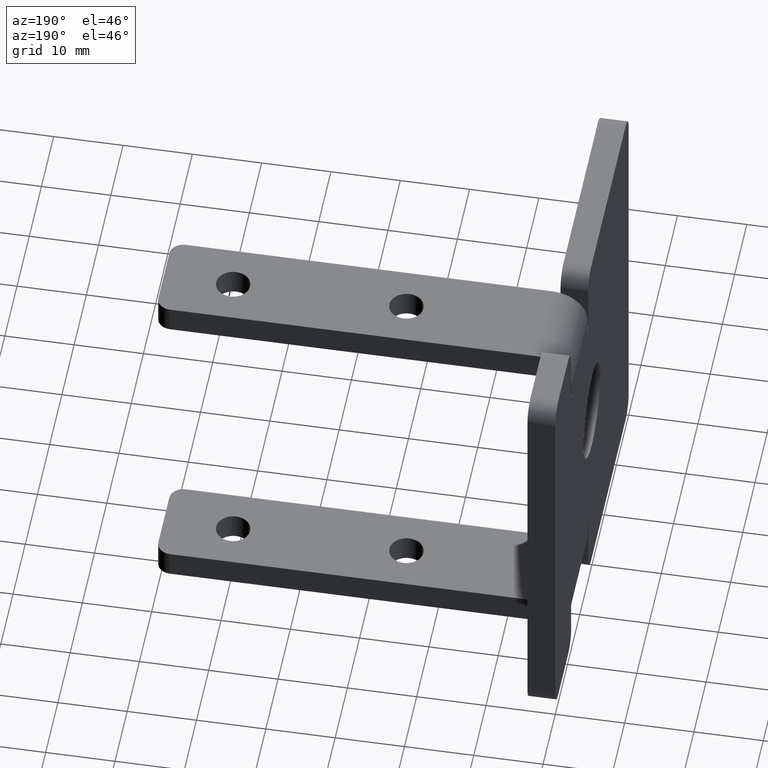
[diagram: clean part render]
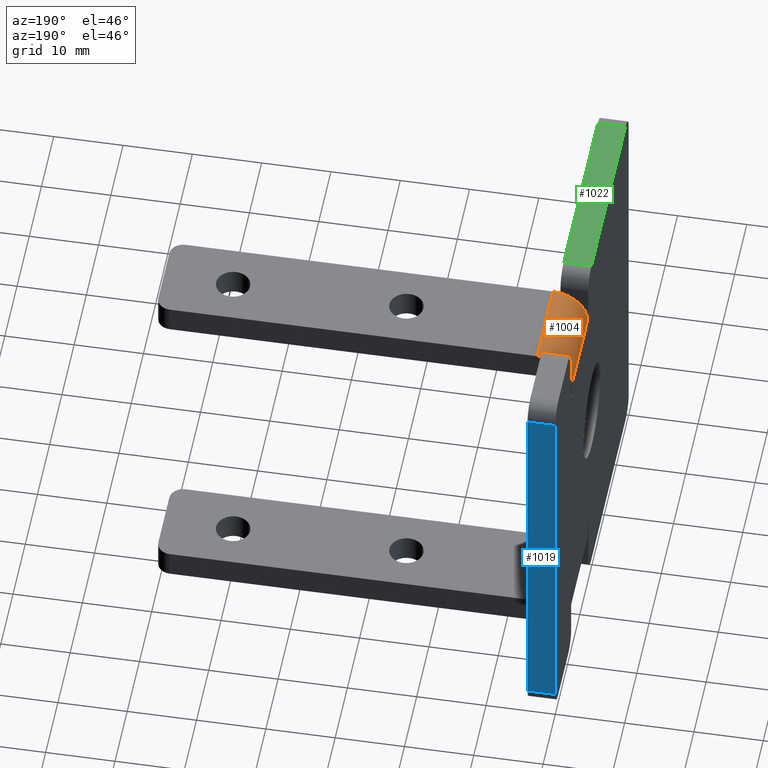
[diagram: same view with three faces highlighted in distinct colors, each labeled with its STEP entity id]
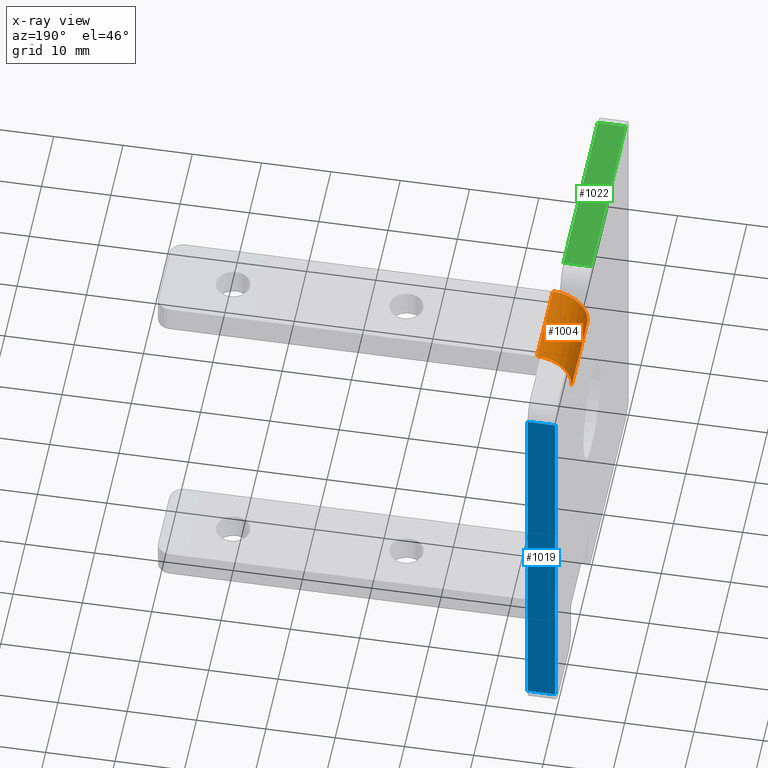
[diagram: x-ray of the same camera — body ghosted, the three highlighted faces saturated]
A machine part, auxiliary view with three faces highlighted in distinct colors.
The next image is the same camera in x-ray (body ghosted, the three faces saturated) — at least one of them is partly hidden behind the body in this view.
Their STEP definitions:

[orange] entity #1004 — the highlighted cylindrical surface (edge-blend (fillet) strip) has radius 5 mm, axis along (0, 1, -0).
#89=FACE_OUTER_BOUND('',#152,.T.);
#152=EDGE_LOOP('',(#856,#857,#858,#859));
#210=LINE('',#1587,#303);
#254=LINE('',#1721,#347);
#303=VECTOR('',#1252,10.);
#347=VECTOR('',#1402,10.);
#410=CIRCLE('',#1129,5.);
#411=CIRCLE('',#1130,4.99999999999999);
#468=VERTEX_POINT('',#1584);
#469=VERTEX_POINT('',#1586);
#500=VERTEX_POINT('',#1678);
#506=VERTEX_POINT('',#1696);
#567=EDGE_CURVE('',#468,#469,#210,.T.);
#635=EDGE_CURVE('',#500,#506,#254,.T.);
#636=EDGE_CURVE('',#469,#500,#410,.T.);
#637=EDGE_CURVE('',#506,#468,#411,.T.);
#856=ORIENTED_EDGE('',*,*,#635,.F.);
#857=ORIENTED_EDGE('',*,*,#636,.F.);
#858=ORIENTED_EDGE('',*,*,#567,.F.);
#859=ORIENTED_EDGE('',*,*,#637,.F.);
#961=CYLINDRICAL_SURFACE('',#1128,5.);
#1004=ADVANCED_FACE('',(#89),#961,.T.);
#1128=AXIS2_PLACEMENT_3D('',#1720,#1400,#1401);
#1129=AXIS2_PLACEMENT_3D('',#1722,#1403,#1404);
#1130=AXIS2_PLACEMENT_3D('',#1723,#1405,#1406);
#1252=DIRECTION('',(0.,1.,-6.34413156928661E-16));
#1400=DIRECTION('center_axis',(0.,1.,-6.34413156928661E-16));
#1401=DIRECTION('ref_axis',(-1.,0.,0.));
#1402=DIRECTION('',(3.94430452610506E-31,-1.,1.74922431089387E-16));
#1403=DIRECTION('center_axis',(0.,1.,-6.34413156928661E-16));
#1404=DIRECTION('ref_axis',(-1.,0.,3.5527136788005E-15));
#1405=DIRECTION('center_axis',(0.,-1.,6.34413156928661E-16));
#1406=DIRECTION('ref_axis',(-9.99200722162643E-16,6.66133814775095E-16,
1.));
#1584=CARTESIAN_POINT('',(0.,3.50000000000007,22.0000000000018));
#1586=CARTESIAN_POINT('',(-5.55111512312578E-16,16.5000000000001,22.0000000000018));
#1587=CARTESIAN_POINT('',(0.,1.50000000000004,22.0000000000018));
#1678=CARTESIAN_POINT('',(5.,16.5000000000001,27.0000000000018));
#1696=CARTESIAN_POINT('',(5.,3.50000000000006,27.0000000000018));
#1720=CARTESIAN_POINT('Origin',(5.,10.0000000000001,22.0000000000018));
#1721=CARTESIAN_POINT('',(5.,10.0000000000001,27.0000000000018));
#1722=CARTESIAN_POINT('Origin',(5.,16.5000000000001,22.0000000000018));
#1723=CARTESIAN_POINT('Origin',(5.,3.50000000000005,22.0000000000018));

[blue] entity #1019 — the highlighted planar face has unit normal (0, 1, 0).
#52=PLANE('',#1147);
#104=FACE_OUTER_BOUND('',#169,.T.);
#169=EDGE_LOOP('',(#921,#922,#923,#924));
#194=LINE('',#1530,#287);
#199=LINE('',#1550,#292);
#263=LINE('',#1748,#356);
#264=LINE('',#1750,#357);
#287=VECTOR('',#1204,10.);
#292=VECTOR('',#1225,10.);
#356=VECTOR('',#1447,10.);
#357=VECTOR('',#1450,10.);
#443=VERTEX_POINT('',#1527);
#444=VERTEX_POINT('',#1529);
#450=VERTEX_POINT('',#1547);
#451=VERTEX_POINT('',#1549);
#538=EDGE_CURVE('',#444,#443,#194,.T.);
#548=EDGE_CURVE('',#451,#450,#199,.T.);
#648=EDGE_CURVE('',#444,#450,#263,.T.);
#649=EDGE_CURVE('',#451,#443,#264,.T.);
#921=ORIENTED_EDGE('',*,*,#648,.F.);
#922=ORIENTED_EDGE('',*,*,#538,.T.);
#923=ORIENTED_EDGE('',*,*,#649,.F.);
#924=ORIENTED_EDGE('',*,*,#548,.T.);
#1019=ADVANCED_FACE('',(#104),#52,.T.);
#1147=AXIS2_PLACEMENT_3D('',#1749,#1448,#1449);
#1204=DIRECTION('',(0.,1.48029736616688E-16,-1.));
#1225=DIRECTION('',(0.,-1.48029736616688E-16,1.));
#1447=DIRECTION('',(-1.,0.,0.));
#1448=DIRECTION('center_axis',(0.,1.,1.48029736616688E-16));
#1449=DIRECTION('ref_axis',(0.,-1.48029736616688E-16,1.));
#1450=DIRECTION('',(1.,0.,0.));
#1527=CARTESIAN_POINT('',(4.,30.,-27.5));
#1529=CARTESIAN_POINT('',(4.,30.,27.5));
#1530=CARTESIAN_POINT('',(4.,30.,-30.));
#1547=CARTESIAN_POINT('',(0.,30.,27.5));
#1549=CARTESIAN_POINT('',(0.,30.,-27.5));
#1550=CARTESIAN_POINT('',(0.,30.,-30.));
#1748=CARTESIAN_POINT('',(0.,30.,27.5));
#1749=CARTESIAN_POINT('Origin',(0.,30.,30.));
#1750=CARTESIAN_POINT('',(0.,30.,-27.5));

[green] entity #1022 — the highlighted planar face has unit normal (0, -0, 1).
#53=PLANE('',#1150);
#107=FACE_OUTER_BOUND('',#172,.T.);
#172=EDGE_LOOP('',(#933,#934,#935,#936));
#185=LINE('',#1498,#278);
#207=LINE('',#1577,#300);
#217=LINE('',#1624,#310);
#265=LINE('',#1753,#358);
#278=VECTOR('',#1181,10.);
#300=VECTOR('',#1245,10.);
#310=VECTOR('',#1293,10.);
#358=VECTOR('',#1455,10.);
#427=VERTEX_POINT('',#1495);
#428=VERTEX_POINT('',#1497);
#463=VERTEX_POINT('',#1574);
#464=VERTEX_POINT('',#1576);
#522=EDGE_CURVE('',#428,#427,#185,.T.);
#562=EDGE_CURVE('',#464,#463,#207,.T.);
#586=EDGE_CURVE('',#464,#427,#217,.T.);
#650=EDGE_CURVE('',#428,#463,#265,.T.);
#933=ORIENTED_EDGE('',*,*,#586,.F.);
#934=ORIENTED_EDGE('',*,*,#562,.T.);
#935=ORIENTED_EDGE('',*,*,#650,.F.);
#936=ORIENTED_EDGE('',*,*,#522,.T.);
#1022=ADVANCED_FACE('',(#107),#53,.T.);
#1150=AXIS2_PLACEMENT_3D('',#1755,#1457,#1458);
#1181=DIRECTION('',(0.,1.,7.40148683083438E-17));
#1245=DIRECTION('',(0.,-1.,-7.40148683083438E-17));
#1293=DIRECTION('',(1.,0.,0.));
#1455=DIRECTION('',(-1.,0.,0.));
#1457=DIRECTION('center_axis',(0.,-7.40148683083438E-17,1.));
#1458=DIRECTION('ref_axis',(1.,0.,0.));
#1495=CARTESIAN_POINT('',(4.,0.500000000000065,30.));
#1497=CARTESIAN_POINT('',(4.,-27.5,30.));
#1498=CARTESIAN_POINT('',(4.,30.,30.));
#1574=CARTESIAN_POINT('',(0.,-27.5,30.));
#1576=CARTESIAN_POINT('',(0.,0.500000000000065,30.));
#1577=CARTESIAN_POINT('',(0.,30.,30.));
#1624=CARTESIAN_POINT('',(0.,0.500000000000067,30.));
#1753=CARTESIAN_POINT('',(0.,-27.5,30.));
#1755=CARTESIAN_POINT('Origin',(0.,-30.,30.));